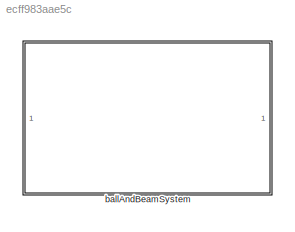
MODEL slx_ecff983aae5c
KIND library
CONFIG AbsTol = auto
CONFIG EnableMultiTasking = off
CONFIG FixedStep = auto
CONFIG MaxStep = auto
CONFIG MinStep = auto
CONFIG RelTol = 1e-3
CONFIG SampleTimeConstraint = Unconstrained
CONFIG Solver = VariableStepAuto
CONFIG SolverName = VariableStepAuto
CONFIG StartTime = 0.0
CONFIG StopTime = 10.0
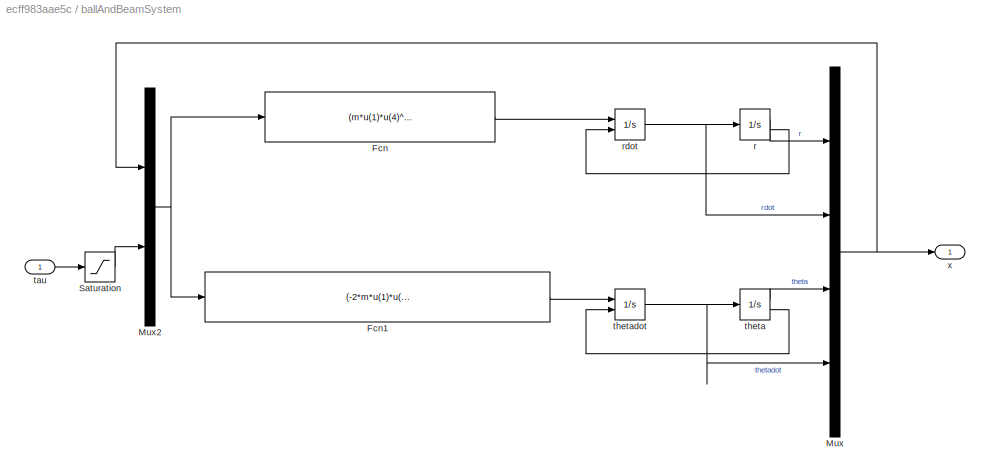
BLOCK [SubSystem] ballAndBeamSystem
  Ports = [1, 1]
  RequestExecContextInheritance = off
BLOCK [Fcn] ballAndBeamSystem/Fcn
  Expr = (m*u(1)*u(4)^2 + m*g*sin(u(3)))/(J_R/R^2 + m)
BLOCK [Fcn] ballAndBeamSystem/Fcn1
  Expr = (-2*m*u(1)*u(2)*u(4) + m*g*u(1)*cos(u(3)) + u(5))/(J + m*u(1)^2)
BLOCK [Mux] ballAndBeamSystem/Mux
  DisplayOption = bar
  Ports = [4, 1]
BLOCK [Mux] ballAndBeamSystem/Mux2
  DisplayOption = bar
  Inputs = 2
  Ports = [2, 1]
BLOCK [Saturate] ballAndBeamSystem/Saturation
  LowerLimit = -1
  UpperLimit = 1
BLOCK [Integrator] ballAndBeamSystem/r
  InitialCondition = x_0(1)
  LimitOutput = on
  LowerSaturationLimit = -0.5
  Ports = [1, 2]
  ShowSaturationPort = on
  UpperSaturationLimit = 0.5
BLOCK [Integrator] ballAndBeamSystem/rdot
  ExternalReset = level hold
  InitialCondition = x_0(2)
  Ports = [2, 1]
BLOCK [Inport] ballAndBeamSystem/tau
BLOCK [Integrator] ballAndBeamSystem/theta
  InitialCondition = x_0(3)
  LimitOutput = on
  LowerSaturationLimit = -deg2rad(80)
  Ports = [1, 2]
  ShowSaturationPort = on
  UpperSaturationLimit = deg2rad(80)
BLOCK [Integrator] ballAndBeamSystem/thetadot
  ExternalReset = level hold
  InitialCondition = x_0(4)
  Ports = [2, 1]
BLOCK [Outport] ballAndBeamSystem/x
LINE ballAndBeamSystem/Fcn1:1 -> ballAndBeamSystem/thetadot:1
LINE ballAndBeamSystem/Fcn:1 -> ballAndBeamSystem/rdot:1
NET ballAndBeamSystem/Mux2:1 -> ballAndBeamSystem/Fcn1:1, ballAndBeamSystem/Fcn:1
NET ballAndBeamSystem/Mux:1 -> ballAndBeamSystem/Mux2:1, ballAndBeamSystem/x:1
LINE ballAndBeamSystem/Saturation:1 -> ballAndBeamSystem/Mux2:2
LINE ballAndBeamSystem/r:1 -> ballAndBeamSystem/Mux:1
LINE ballAndBeamSystem/r:2 -> ballAndBeamSystem/rdot:2
NET ballAndBeamSystem/rdot:1 -> ballAndBeamSystem/Mux:2, ballAndBeamSystem/r:1
LINE ballAndBeamSystem/tau:1 -> ballAndBeamSystem/Saturation:1
LINE ballAndBeamSystem/theta:1 -> ballAndBeamSystem/Mux:3
LINE ballAndBeamSystem/theta:2 -> ballAndBeamSystem/thetadot:2
NET ballAndBeamSystem/thetadot:1 -> ballAndBeamSystem/Mux:4, ballAndBeamSystem/theta:1
note: NET lines group one-source signal fan-out (src -> all destinations, sorted); 1:1 wires keep LINE
